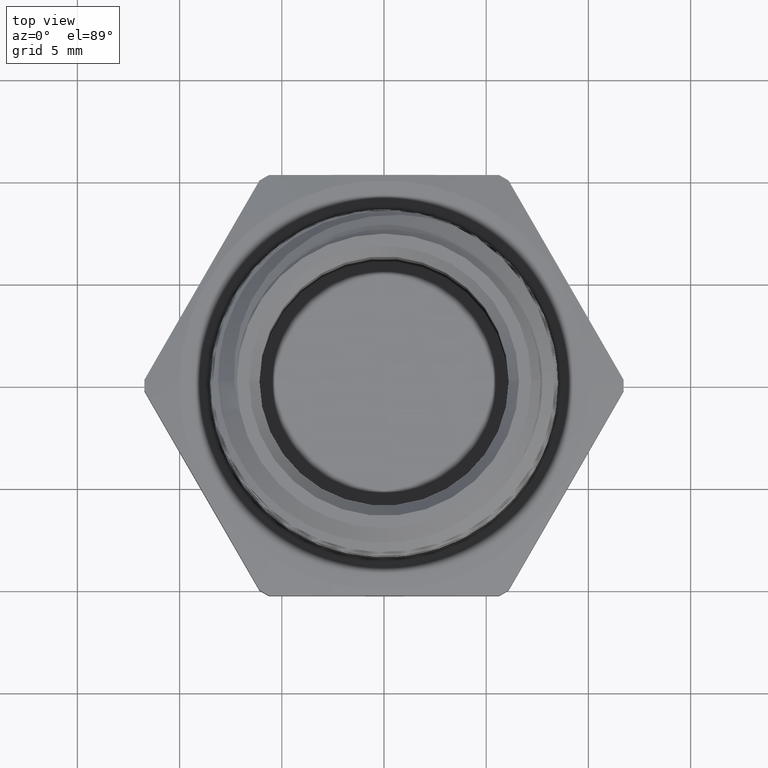
[diagram: clean part render]
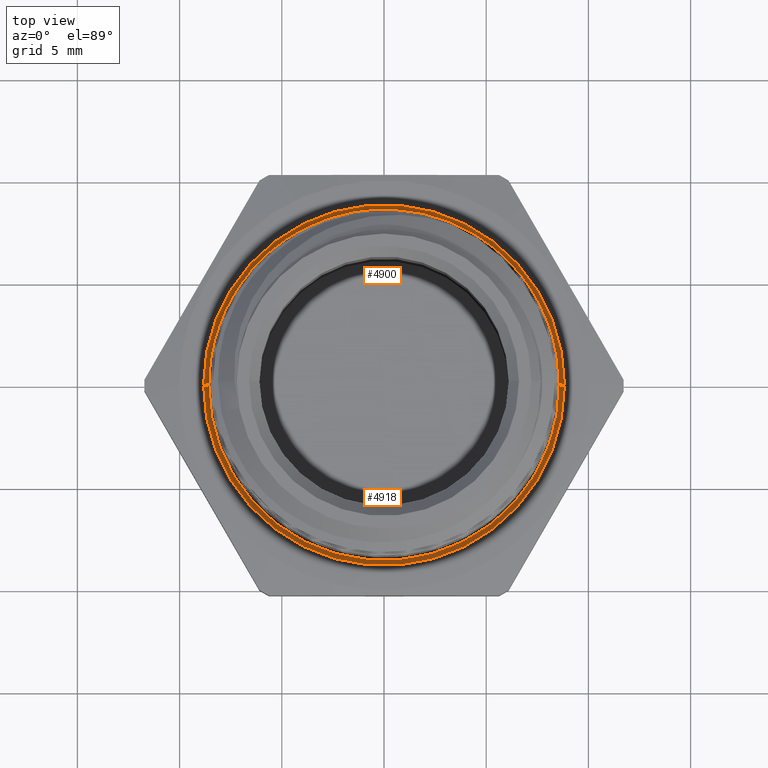
[diagram: same view with one multi-face feature highlighted, each face labeled with its STEP entity id]
A machine part, top view. The highlighted faces form ONE feature: a constant-radius fillet chain: 2 tangent blend faces with common blend radius 0.254 mm. The faces share edges in the B-rep.
Their STEP definitions:
[1] entity #4900 (Torus):
#380 = CIRCLE ( 'NONE', #971, 0.01000000000000003000 ) ;
#414 = CIRCLE ( 'NONE', #979, 0.3375000000000000200 ) ;
#473 = CIRCLE ( 'NONE', #993, 0.3475000000000000300 ) ;
#506 = FACE_OUTER_BOUND ( 'NONE', #1142, .T. ) ;
#510 = TOROIDAL_SURFACE ( 'NONE', #1017, 0.3475000000000000300, 0.01000000000000000000 ) ;
#631 = ORIENTED_EDGE ( 'NONE', *, *, #924, .F. ) ;
#632 = ORIENTED_EDGE ( 'NONE', *, *, #810, .T. ) ;
#636 = ORIENTED_EDGE ( 'NONE', *, *, #874, .F. ) ;
#637 = ORIENTED_EDGE ( 'NONE', *, *, #844, .F. ) ;
#667 = VERTEX_POINT ( 'NONE', #5230 ) ;
#670 = VERTEX_POINT ( 'NONE', #5244 ) ;
#711 = VERTEX_POINT ( 'NONE', #5170 ) ;
#763 = VERTEX_POINT ( 'NONE', #5223 ) ;
#810 = EDGE_CURVE ( 'NONE', #763, #711, #1840, .T. ) ;
#844 = EDGE_CURVE ( 'NONE', #670, #667, #380, .T. ) ;
#874 = EDGE_CURVE ( 'NONE', #763, #670, #414, .T. ) ;
#924 = EDGE_CURVE ( 'NONE', #667, #711, #473, .T. ) ;
#958 = AXIS2_PLACEMENT_3D ( 'NONE', #4748, #4747, #4746 ) ;
#971 = AXIS2_PLACEMENT_3D ( 'NONE', #3543, #3544, #3545 ) ;
#979 = AXIS2_PLACEMENT_3D ( 'NONE', #4066, #4067, #4068 ) ;
#993 = AXIS2_PLACEMENT_3D ( 'NONE', #4575, #4576, #4577 ) ;
#1017 = AXIS2_PLACEMENT_3D ( 'NONE', #1815, #1817, #1820 ) ;
#1142 = EDGE_LOOP ( 'NONE', ( #637, #636, #632, #631 ) ) ;
#1815 = CARTESIAN_POINT ( 'NONE',  ( 0.0000000000000000000, 0.0000000000000000000, 0.1299999999999999800 ) ) ;
#1817 = DIRECTION ( 'NONE',  ( -0.0000000000000000000, 0.0000000000000000000, 1.000000000000000000 ) ) ;
#1820 = DIRECTION ( 'NONE',  ( 1.000000000000000000, 0.0000000000000000000, 0.0000000000000000000 ) ) ;
#1840 = CIRCLE ( 'NONE', #958, 0.009999999999999995000 ) ;
#3543 = CARTESIAN_POINT ( 'NONE',  ( -0.3475000000000000300, 4.255647627037053400E-017, 0.1299999999999999800 ) ) ;
#3544 = DIRECTION ( 'NONE',  ( 1.224646799147353200E-016, 1.000000000000000000, 0.0000000000000000000 ) ) ;
#3545 = DIRECTION ( 'NONE',  ( -1.000000000000000000, 1.224646799147346800E-016, 0.0000000000000000000 ) ) ;
#4066 = CARTESIAN_POINT ( 'NONE',  ( 0.0000000000000000000, 0.0000000000000000000, 0.1299999999999999800 ) ) ;
#4067 = DIRECTION ( 'NONE',  ( -0.0000000000000000000, 0.0000000000000000000, 1.000000000000000000 ) ) ;
#4068 = DIRECTION ( 'NONE',  ( 1.000000000000000000, 0.0000000000000000000, 0.0000000000000000000 ) ) ;
#4575 = CARTESIAN_POINT ( 'NONE',  ( 0.0000000000000000000, 0.0000000000000000000, 0.1200000000000000000 ) ) ;
#4576 = DIRECTION ( 'NONE',  ( 0.0000000000000000000, -0.0000000000000000000, -1.000000000000000000 ) ) ;
#4577 = DIRECTION ( 'NONE',  ( 1.000000000000000000, 0.0000000000000000000, 0.0000000000000000000 ) ) ;
#4746 = DIRECTION ( 'NONE',  ( 0.0000000000000000000, 0.0000000000000000000, -1.000000000000000000 ) ) ;
#4747 = DIRECTION ( 'NONE',  ( 0.0000000000000000000, -1.000000000000000000, 0.0000000000000000000 ) ) ;
#4748 = CARTESIAN_POINT ( 'NONE',  ( 0.3475000000000000300, 0.0000000000000000000, 0.1299999999999999800 ) ) ;
#4900 = ADVANCED_FACE ( 'NONE', ( #506 ), #510, .F. ) ;
#5170 = CARTESIAN_POINT ( 'NONE',  ( 0.3475000000000000300, 0.0000000000000000000, 0.1199999999999999800 ) ) ;
#5223 = CARTESIAN_POINT ( 'NONE',  ( 0.3375000000000000200, 4.133182947122317800E-017, 0.1299999999999999800 ) ) ;
#5230 = CARTESIAN_POINT ( 'NONE',  ( -0.3475000000000000300, 4.255647627037053400E-017, 0.1199999999999999800 ) ) ;
#5244 = CARTESIAN_POINT ( 'NONE',  ( -0.3375000000000000200, 0.0000000000000000000, 0.1299999999999999800 ) ) ;
[2] entity #4918 (Torus):
#224 = CARTESIAN_POINT ( 'NONE',  ( 0.0000000000000000000, 0.0000000000000000000, 0.1299999999999999800 ) ) ;
#225 = DIRECTION ( 'NONE',  ( -0.0000000000000000000, 0.0000000000000000000, 1.000000000000000000 ) ) ;
#229 = DIRECTION ( 'NONE',  ( 1.000000000000000000, 0.0000000000000000000, 0.0000000000000000000 ) ) ;
#380 = CIRCLE ( 'NONE', #971, 0.01000000000000003000 ) ;
#385 = CIRCLE ( 'NONE', #970, 0.3375000000000000200 ) ;
#537 = FACE_OUTER_BOUND ( 'NONE', #1127, .T. ) ;
#538 = TOROIDAL_SURFACE ( 'NONE', #2570, 0.3475000000000000300, 0.01000000000000000000 ) ;
#667 = VERTEX_POINT ( 'NONE', #5230 ) ;
#670 = VERTEX_POINT ( 'NONE', #5244 ) ;
#711 = VERTEX_POINT ( 'NONE', #5170 ) ;
#763 = VERTEX_POINT ( 'NONE', #5223 ) ;
#810 = EDGE_CURVE ( 'NONE', #763, #711, #1840, .T. ) ;
#812 = EDGE_CURVE ( 'NONE', #711, #667, #1838, .T. ) ;
#843 = EDGE_CURVE ( 'NONE', #670, #763, #385, .T. ) ;
#844 = EDGE_CURVE ( 'NONE', #670, #667, #380, .T. ) ;
#958 = AXIS2_PLACEMENT_3D ( 'NONE', #4748, #4747, #4746 ) ;
#960 = AXIS2_PLACEMENT_3D ( 'NONE', #4739, #4738, #4737 ) ;
#970 = AXIS2_PLACEMENT_3D ( 'NONE', #3539, #3540, #3541 ) ;
#971 = AXIS2_PLACEMENT_3D ( 'NONE', #3543, #3544, #3545 ) ;
#1127 = EDGE_LOOP ( 'NONE', ( #3968, #4050, #3964, #4039 ) ) ;
#1838 = CIRCLE ( 'NONE', #960, 0.3475000000000000300 ) ;
#1840 = CIRCLE ( 'NONE', #958, 0.009999999999999995000 ) ;
#2570 = AXIS2_PLACEMENT_3D ( 'NONE', #224, #225, #229 ) ;
#3539 = CARTESIAN_POINT ( 'NONE',  ( 0.0000000000000000000, 0.0000000000000000000, 0.1299999999999999800 ) ) ;
#3540 = DIRECTION ( 'NONE',  ( -0.0000000000000000000, 0.0000000000000000000, 1.000000000000000000 ) ) ;
#3541 = DIRECTION ( 'NONE',  ( 1.000000000000000000, 0.0000000000000000000, 0.0000000000000000000 ) ) ;
#3543 = CARTESIAN_POINT ( 'NONE',  ( -0.3475000000000000300, 4.255647627037053400E-017, 0.1299999999999999800 ) ) ;
#3544 = DIRECTION ( 'NONE',  ( 1.224646799147353200E-016, 1.000000000000000000, 0.0000000000000000000 ) ) ;
#3545 = DIRECTION ( 'NONE',  ( -1.000000000000000000, 1.224646799147346800E-016, 0.0000000000000000000 ) ) ;
#3964 = ORIENTED_EDGE ( 'NONE', *, *, #812, .F. ) ;
#3968 = ORIENTED_EDGE ( 'NONE', *, *, #843, .F. ) ;
#4039 = ORIENTED_EDGE ( 'NONE', *, *, #810, .F. ) ;
#4050 = ORIENTED_EDGE ( 'NONE', *, *, #844, .T. ) ;
#4737 = DIRECTION ( 'NONE',  ( 1.000000000000000000, 0.0000000000000000000, 0.0000000000000000000 ) ) ;
#4738 = DIRECTION ( 'NONE',  ( 0.0000000000000000000, -0.0000000000000000000, -1.000000000000000000 ) ) ;
#4739 = CARTESIAN_POINT ( 'NONE',  ( 0.0000000000000000000, 0.0000000000000000000, 0.1200000000000000000 ) ) ;
#4746 = DIRECTION ( 'NONE',  ( 0.0000000000000000000, 0.0000000000000000000, -1.000000000000000000 ) ) ;
#4747 = DIRECTION ( 'NONE',  ( 0.0000000000000000000, -1.000000000000000000, 0.0000000000000000000 ) ) ;
#4748 = CARTESIAN_POINT ( 'NONE',  ( 0.3475000000000000300, 0.0000000000000000000, 0.1299999999999999800 ) ) ;
#4918 = ADVANCED_FACE ( 'NONE', ( #537 ), #538, .F. ) ;
#5170 = CARTESIAN_POINT ( 'NONE',  ( 0.3475000000000000300, 0.0000000000000000000, 0.1199999999999999800 ) ) ;
#5223 = CARTESIAN_POINT ( 'NONE',  ( 0.3375000000000000200, 4.133182947122317800E-017, 0.1299999999999999800 ) ) ;
#5230 = CARTESIAN_POINT ( 'NONE',  ( -0.3475000000000000300, 4.255647627037053400E-017, 0.1199999999999999800 ) ) ;
#5244 = CARTESIAN_POINT ( 'NONE',  ( -0.3375000000000000200, 0.0000000000000000000, 0.1299999999999999800 ) ) ;